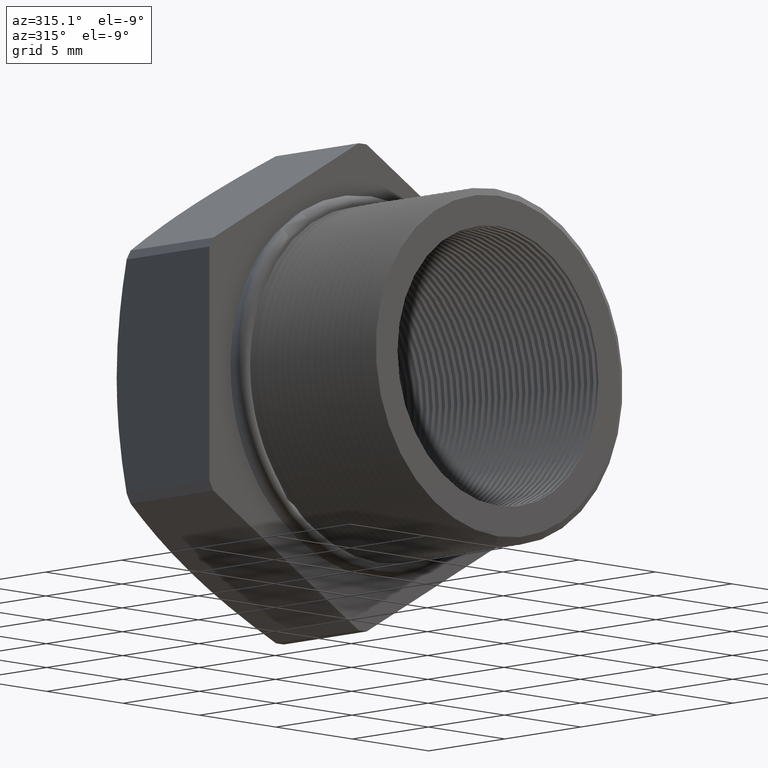
[diagram: clean part render]
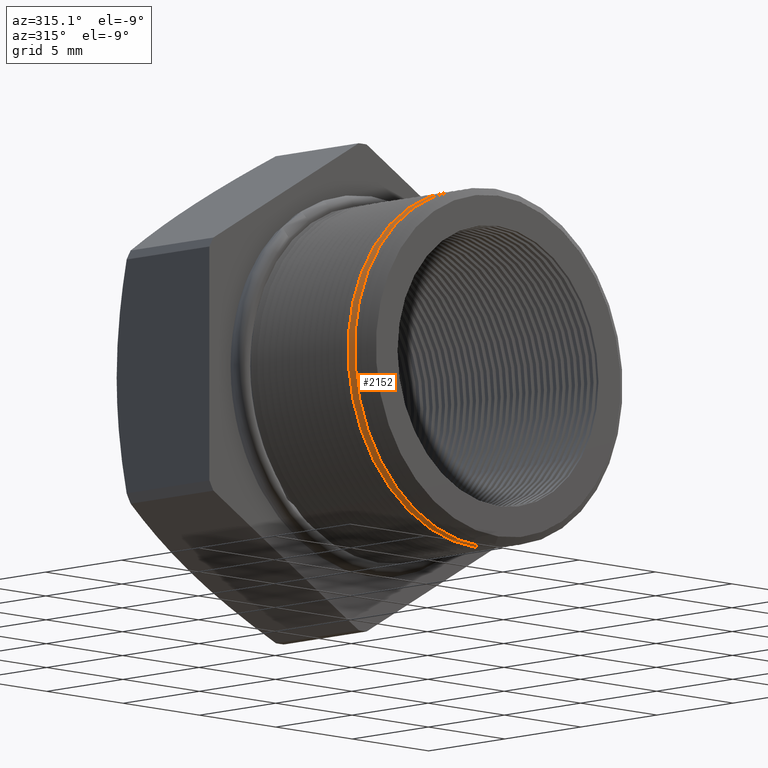
[diagram: same view with one face highlighted and labeled with its STEP entity id]
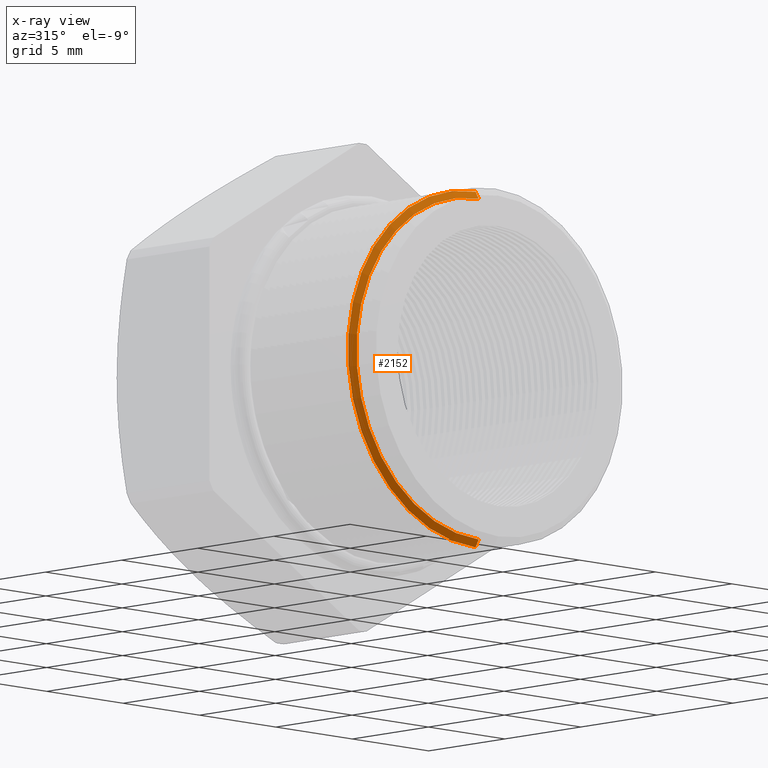
[diagram: x-ray of the same camera — body ghosted, the highlighted face saturated]
A machine part, auxiliary view. The second image highlights one B-rep face of the part: STEP entity #2152.
The next image is the same camera in x-ray: the body ghosted, the highlighted face saturated — about 0% of this face is hidden behind the body in this view.
In plain terms, the highlighted conical surface has half-angle 60 deg.
Its self-contained STEP definition (entity closure, byte-faithful):
#1782 = EDGE_CURVE ( 'NONE', #8577, #8579, #6089, .T. ) ;
#2151 = EDGE_CURVE ( 'NONE', #8614, #9162, #6649, .T. ) ;
#2152 = ADVANCED_FACE ( 'NONE', ( #6644 ), #6643, .T. ) ;
#2153 = ORIENTED_EDGE ( 'NONE', *, *, #8564, .F. ) ;
#2154 = ORIENTED_EDGE ( 'NONE', *, *, #1782, .T. ) ;
#2155 = ORIENTED_EDGE ( 'NONE', *, *, #9157, .T. ) ;
#2156 = ORIENTED_EDGE ( 'NONE', *, *, #2151, .F. ) ;
#2173 = EDGE_LOOP ( 'NONE', ( #2153, #2154, #2155, #2156 ) ) ;
#6080 = DIRECTION ( 'NONE',  ( 0.0000000000000000000, 0.0000000000000000000, 1.000000000000000000 ) ) ;
#6081 = DIRECTION ( 'NONE',  ( -0.0000000000000000000, 1.000000000000000000, -0.0000000000000000000 ) ) ;
#6082 = CARTESIAN_POINT ( 'NONE',  ( 0.0000000000000000000, -0.1323974636441129200, 0.0000000000000000000 ) ) ;
#6083 = AXIS2_PLACEMENT_3D ( 'NONE', #6082, #6081, #6080 ) ;
#6089 = CIRCLE ( 'NONE', #6083, 0.3150000000000000000 ) ;
#6638 = DIRECTION ( 'NONE',  ( 0.0000000000000000000, 0.0000000000000000000, 1.000000000000000000 ) ) ;
#6639 = DIRECTION ( 'NONE',  ( -0.0000000000000000000, 1.000000000000000000, -0.0000000000000000000 ) ) ;
#6640 = CARTESIAN_POINT ( 'NONE',  ( 0.0000000000000000000, -0.1244451094170520000, 0.0000000000000000000 ) ) ;
#6641 = AXIS2_PLACEMENT_3D ( 'NONE', #6640, #6639, #6638 ) ;
#6643 = CONICAL_SURFACE ( 'NONE', #6641, 0.3287738815610546400, 1.047197551196598700 ) ;
#6644 = FACE_OUTER_BOUND ( 'NONE', #2173, .T. ) ;
#6645 = DIRECTION ( 'NONE',  ( 0.0000000000000000000, 0.0000000000000000000, 1.000000000000000000 ) ) ;
#6646 = DIRECTION ( 'NONE',  ( -0.0000000000000000000, 1.000000000000000000, -0.0000000000000000000 ) ) ;
#6647 = CARTESIAN_POINT ( 'NONE',  ( 0.0000000000000000000, -0.1244451094170520000, 0.0000000000000000000 ) ) ;
#6648 = AXIS2_PLACEMENT_3D ( 'NONE', #6647, #6646, #6645 ) ;
#6649 = CIRCLE ( 'NONE', #6648, 0.3287738815610546400 ) ;
#7200 = DIRECTION ( 'NONE',  ( 1.060575238724907500E-016, 0.4999999999999991100, -0.8660254037844391500 ) ) ;
#7201 = VECTOR ( 'NONE', #7200, 39.37007874015748100 ) ;
#7202 = CARTESIAN_POINT ( 'NONE',  ( 4.026318816969965600E-017, -0.1244451094170520000, -0.3287738815610546400 ) ) ;
#7203 = LINE ( 'NONE', #7202, #7201 ) ;
#7247 = CARTESIAN_POINT ( 'NONE',  ( 3.857637417314162700E-017, -0.1323974636441129200, 0.3150000000000000000 ) ) ;
#7249 = CARTESIAN_POINT ( 'NONE',  ( 0.0000000000000000000, -0.1323974636441129200, -0.3150000000000000000 ) ) ;
#7307 = CARTESIAN_POINT ( 'NONE',  ( 0.0000000000000000000, -0.1244451094170520000, -0.3287738815610546400 ) ) ;
#8220 = DIRECTION ( 'NONE',  ( 0.0000000000000000000, 0.4999999999999991100, 0.8660254037844391500 ) ) ;
#8221 = CARTESIAN_POINT ( 'NONE',  ( 0.0000000000000000000, -0.1244451094170520000, 0.3287738815610546400 ) ) ;
#8222 = LINE ( 'NONE', #8221, #8279 ) ;
#8267 = CARTESIAN_POINT ( 'NONE',  ( 4.026318816969966200E-017, -0.1244451094170520000, 0.3287738815610546400 ) ) ;
#8279 = VECTOR ( 'NONE', #8220, 39.37007874015748100 ) ;
#8564 = EDGE_CURVE ( 'NONE', #8577, #8614, #7203, .T. ) ;
#8577 = VERTEX_POINT ( 'NONE', #7249 ) ;
#8579 = VERTEX_POINT ( 'NONE', #7247 ) ;
#8614 = VERTEX_POINT ( 'NONE', #7307 ) ;
#9157 = EDGE_CURVE ( 'NONE', #8579, #9162, #8222, .T. ) ;
#9162 = VERTEX_POINT ( 'NONE', #8267 ) ;